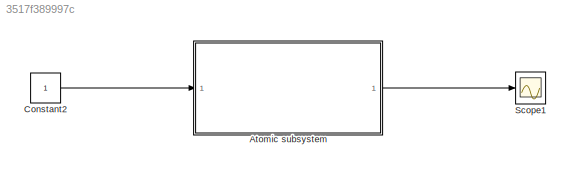
MODEL slx_3517f389997c
KIND model
CONFIG AbsTol = auto
CONFIG EnableMultiTasking = off
CONFIG FixedStep = auto
CONFIG MaxStep = auto
CONFIG MinStep = auto
CONFIG RelTol = 1e-3
CONFIG SampleTimeConstraint = Unconstrained
CONFIG SolverName = VariableStepAuto
CONFIG StartTime = 0.0
CONFIG StopTime = 10.0
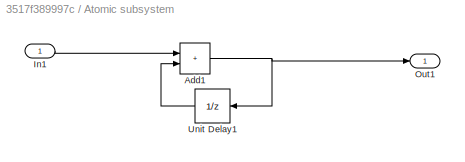
BLOCK [SubSystem] Atomic subsystem
  TreatAsAtomicUnit = on
BLOCK [Sum] Atomic subsystem/Add1
  IconShape = rectangular
BLOCK [Inport] Atomic subsystem/In1
BLOCK [Outport] Atomic subsystem/Out1
BLOCK [UnitDelay] Atomic subsystem/Unit Delay1
  HasFrameUpgradeWarning = on
  NameLocation = top
  SampleTime = -1
BLOCK [Constant] Constant2
BLOCK [Scope] Scope1
  Floating = off
  NumInputPorts = 1
  ScopeSpecificationString = Simulink.scopes.TimeScopeBlockCfg('CurrentConfiguration', extmgr.ConfigurationSet(extmgr.Configuration('Core','General UI',true),extmgr.Configuration('Core','Source UI',true),extmgr.Configuration('Sources','WiredSimulink',true,'DataLoggingVariableName','ScopeData1'),extmgr.Configuration('Visuals','Time Domain',true,'SerializedDisplays',{struct('MinYLimReal','-0.625','MaxYLimReal','5.625','YLabelRe...<+1381ch>
NET Atomic subsystem/Add1:1 -> Atomic subsystem/Out1:1, Atomic subsystem/Unit Delay1:1
LINE Atomic subsystem/In1:1 -> Atomic subsystem/Add1:1
LINE Atomic subsystem/Unit Delay1:1 -> Atomic subsystem/Add1:2
LINE Atomic subsystem:1 -> Scope1:1
LINE Constant2:1 -> Atomic subsystem:1
note: NET lines group one-source signal fan-out (src -> all destinations, sorted); 1:1 wires keep LINE
